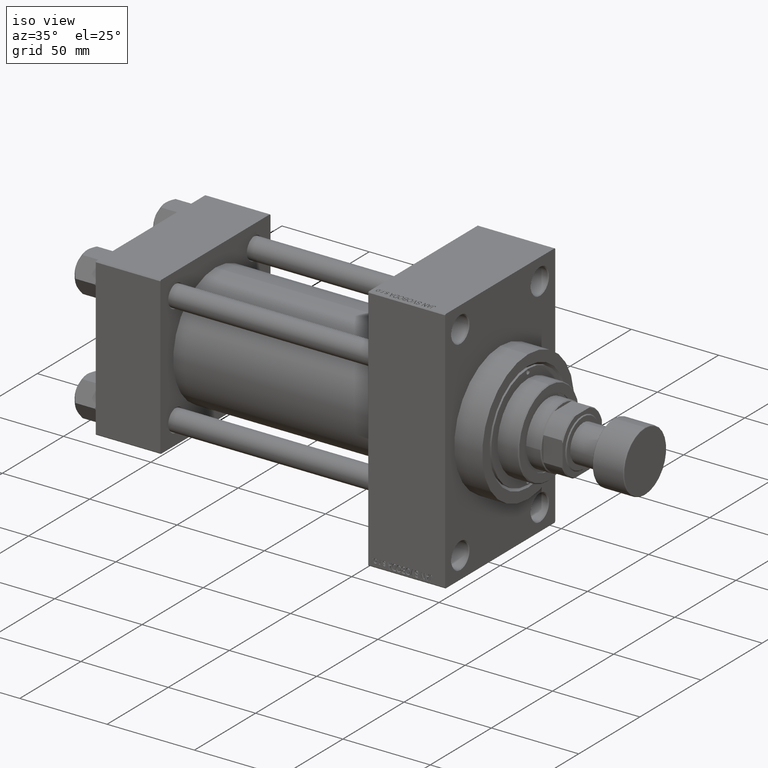
[diagram: clean part render]
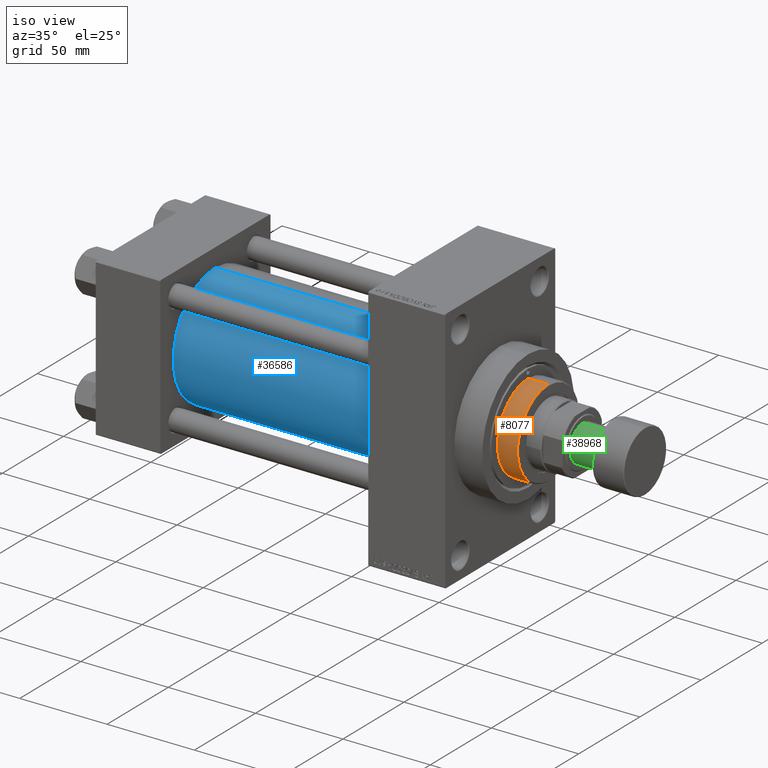
[diagram: same view with three faces highlighted in distinct colors, each labeled with its STEP entity id]
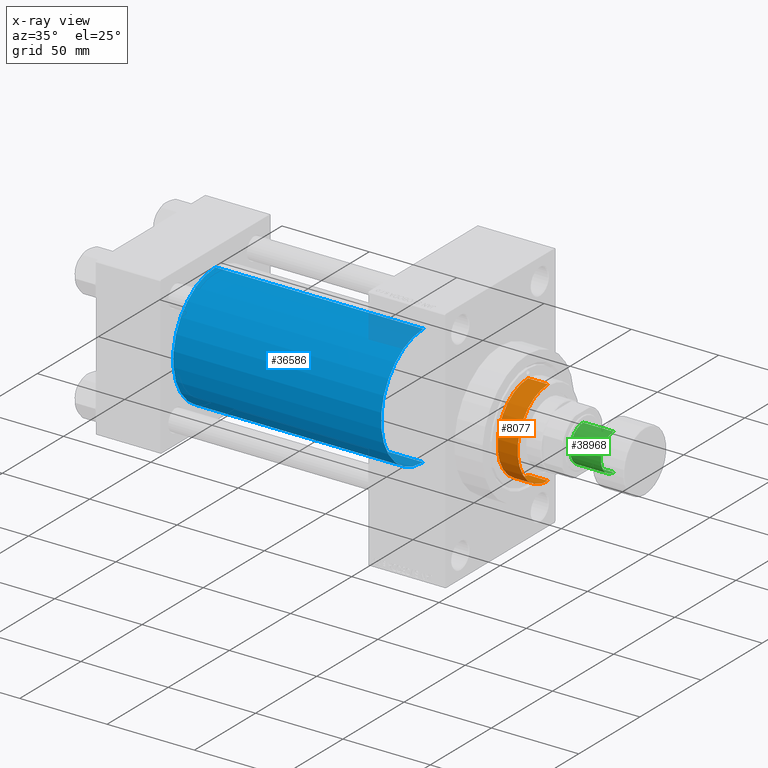
[diagram: x-ray of the same camera — body ghosted, the three highlighted faces saturated]
A machine part, iso view with three faces highlighted in distinct colors.
The next image is the same camera in x-ray (body ghosted, the three faces saturated) — at least one of them is partly hidden behind the body in this view.
Their STEP definitions:

[orange] entity #8077 — the highlighted cylindrical surface (partial cylindrical patch) has radius 25 mm, axis along (-1, 0, 0).
#81 = CARTESIAN_POINT ( 'NONE',  ( 0.000000000000000000, 0.000000000000000000, 54.76000000000000512 ) ) ;
#1305 = VECTOR ( 'NONE', #6706, 1000.000000000000000 ) ;
#3034 = ORIENTED_EDGE ( 'NONE', *, *, #9166, .T. ) ;
#3591 = DIRECTION ( 'NONE',  ( -0.000000000000000000, -0.000000000000000000, -1.000000000000000000 ) ) ;
#6706 = DIRECTION ( 'NONE',  ( -0.000000000000000000, -0.000000000000000000, -1.000000000000000000 ) ) ;
#7332 = EDGE_CURVE ( 'NONE', #40656, #12253, #44641, .T. ) ;
#7592 = CARTESIAN_POINT ( 'NONE',  ( 25.00000000000000000, 3.061616997868383043E-15, 55.26000000000000512 ) ) ;
#8077 = ADVANCED_FACE ( 'NONE', ( #37730 ), #26358, .T. ) ;
#9166 = EDGE_CURVE ( 'NONE', #12253, #38512, #20686, .T. ) ;
#10588 = LINE ( 'NONE', #14700, #1305 ) ;
#11282 = VERTEX_POINT ( 'NONE', #36282 ) ;
#11832 = DIRECTION ( 'NONE',  ( -1.000000000000000000, 0.000000000000000000, 0.000000000000000000 ) ) ;
#11914 = CARTESIAN_POINT ( 'NONE',  ( 0.000000000000000000, 0.000000000000000000, 43.25999999999999801 ) ) ;
#12253 = VERTEX_POINT ( 'NONE', #24327 ) ;
#12686 = AXIS2_PLACEMENT_3D ( 'NONE', #81, #29639, #44413 ) ;
#14700 = CARTESIAN_POINT ( 'NONE',  ( -25.00000000000000000, 0.000000000000000000, 55.26000000000000512 ) ) ;
#17575 = AXIS2_PLACEMENT_3D ( 'NONE', #11914, #22576, #27154 ) ;
#20686 = CIRCLE ( 'NONE', #17575, 25.00000000000000000 ) ;
#22371 = DIRECTION ( 'NONE',  ( -0.000000000000000000, -0.000000000000000000, -1.000000000000000000 ) ) ;
#22576 = DIRECTION ( 'NONE',  ( 0.000000000000000000, 0.000000000000000000, 1.000000000000000000 ) ) ;
#23556 = ORIENTED_EDGE ( 'NONE', *, *, #34145, .T. ) ;
#24327 = CARTESIAN_POINT ( 'NONE',  ( 25.00000000000000000, 3.061616997868383043E-15, 43.25999999999999801 ) ) ;
#25207 = ORIENTED_EDGE ( 'NONE', *, *, #40992, .F. ) ;
#26358 = CYLINDRICAL_SURFACE ( 'NONE', #44588, 25.00000000000000000 ) ;
#27154 = DIRECTION ( 'NONE',  ( 1.000000000000000000, 0.000000000000000000, 0.000000000000000000 ) ) ;
#27474 = CIRCLE ( 'NONE', #12686, 25.00000000000000000 ) ;
#28801 = CARTESIAN_POINT ( 'NONE',  ( 25.00000000000000000, 3.061616997868383043E-15, 54.76000000000000512 ) ) ;
#29639 = DIRECTION ( 'NONE',  ( 0.000000000000000000, 0.000000000000000000, -1.000000000000000000 ) ) ;
#34145 = EDGE_CURVE ( 'NONE', #11282, #40656, #27474, .T. ) ;
#36282 = CARTESIAN_POINT ( 'NONE',  ( -25.00000000000000000, 0.000000000000000000, 54.76000000000000512 ) ) ;
#37730 = FACE_OUTER_BOUND ( 'NONE', #40829, .T. ) ;
#38512 = VERTEX_POINT ( 'NONE', #39704 ) ;
#39704 = CARTESIAN_POINT ( 'NONE',  ( -25.00000000000000000, 0.000000000000000000, 43.25999999999999801 ) ) ;
#40656 = VERTEX_POINT ( 'NONE', #28801 ) ;
#40829 = EDGE_LOOP ( 'NONE', ( #23556, #46656, #3034, #25207 ) ) ;
#40896 = CARTESIAN_POINT ( 'NONE',  ( 0.000000000000000000, 0.000000000000000000, 55.26000000000000512 ) ) ;
#40992 = EDGE_CURVE ( 'NONE', #11282, #38512, #10588, .T. ) ;
#44413 = DIRECTION ( 'NONE',  ( 1.000000000000000000, 0.000000000000000000, 0.000000000000000000 ) ) ;
#44588 = AXIS2_PLACEMENT_3D ( 'NONE', #40896, #3591, #11832 ) ;
#44641 = LINE ( 'NONE', #7592, #46113 ) ;
#46113 = VECTOR ( 'NONE', #22371, 1000.000000000000000 ) ;
#46656 = ORIENTED_EDGE ( 'NONE', *, *, #7332, .T. ) ;

[blue] entity #36586 — the highlighted cylindrical surface (partial cylindrical patch) has radius 34.5 mm, axis along (-1, -0, -0).
#893 = DIRECTION ( 'NONE',  ( 1.000000000000000000, -0.000000000000000000, 0.000000000000000000 ) ) ;
#1788 = EDGE_CURVE ( 'NONE', #35117, #19551, #35867, .T. ) ;
#2619 = DIRECTION ( 'NONE',  ( 0.000000000000000000, 0.000000000000000000, -1.000000000000000000 ) ) ;
#3683 = CYLINDRICAL_SURFACE ( 'NONE', #25065, 34.50000000000000000 ) ;
#4121 = EDGE_LOOP ( 'NONE', ( #36877, #37000, #34770, #21882 ) ) ;
#4221 = LINE ( 'NONE', #33760, #29779 ) ;
#4662 = VERTEX_POINT ( 'NONE', #31135 ) ;
#7264 = DIRECTION ( 'NONE',  ( -1.000000000000000000, -0.000000000000000000, -0.000000000000000000 ) ) ;
#7574 = CIRCLE ( 'NONE', #30783, 34.50000000000000000 ) ;
#11204 = DIRECTION ( 'NONE',  ( 0.000000000000000000, 0.000000000000000000, 1.000000000000000000 ) ) ;
#14571 = CARTESIAN_POINT ( 'NONE',  ( 156.0000000000000000, -2.602085213965210642E-15, 0.000000000000000000 ) ) ;
#14718 = DIRECTION ( 'NONE',  ( 1.000000000000000000, 0.000000000000000000, 0.000000000000000000 ) ) ;
#15280 = CARTESIAN_POINT ( 'NONE',  ( 37.00000000000000711, -2.602085213965210642E-15, 34.50000000000000000 ) ) ;
#15688 = DIRECTION ( 'NONE',  ( 0.000000000000000000, 0.000000000000000000, 1.000000000000000000 ) ) ;
#17480 = EDGE_CURVE ( 'NONE', #4662, #35117, #29547, .T. ) ;
#19326 = CARTESIAN_POINT ( 'NONE',  ( 37.00000000000000711, -2.602085213965210642E-15, 0.000000000000000000 ) ) ;
#19551 = VERTEX_POINT ( 'NONE', #25959 ) ;
#21200 = AXIS2_PLACEMENT_3D ( 'NONE', #19326, #893, #15688 ) ;
#21882 = ORIENTED_EDGE ( 'NONE', *, *, #1788, .T. ) ;
#22293 = CARTESIAN_POINT ( 'NONE',  ( 156.0000000000000000, -2.602085213965210642E-15, 34.50000000000000000 ) ) ;
#23925 = VECTOR ( 'NONE', #7264, 1000.000000000000000 ) ;
#25065 = AXIS2_PLACEMENT_3D ( 'NONE', #33233, #44368, #11204 ) ;
#25959 = CARTESIAN_POINT ( 'NONE',  ( 37.00000000000000711, 1.622946243093158675E-15, -34.50000000000000000 ) ) ;
#29547 = LINE ( 'NONE', #22293, #23925 ) ;
#29779 = VECTOR ( 'NONE', #34483, 1000.000000000000000 ) ;
#30783 = AXIS2_PLACEMENT_3D ( 'NONE', #14571, #14718, #2619 ) ;
#31135 = CARTESIAN_POINT ( 'NONE',  ( 156.0000000000000000, -2.602085213965210642E-15, 34.50000000000000000 ) ) ;
#33233 = CARTESIAN_POINT ( 'NONE',  ( 156.0000000000000000, -2.602085213965210642E-15, 0.000000000000000000 ) ) ;
#33760 = CARTESIAN_POINT ( 'NONE',  ( 156.0000000000000000, 1.622946243093158675E-15, -34.50000000000000000 ) ) ;
#34483 = DIRECTION ( 'NONE',  ( -1.000000000000000000, -0.000000000000000000, -0.000000000000000000 ) ) ;
#34770 = ORIENTED_EDGE ( 'NONE', *, *, #17480, .T. ) ;
#34934 = EDGE_CURVE ( 'NONE', #35889, #19551, #4221, .T. ) ;
#35117 = VERTEX_POINT ( 'NONE', #15280 ) ;
#35867 = CIRCLE ( 'NONE', #21200, 34.50000000000000000 ) ;
#35889 = VERTEX_POINT ( 'NONE', #42826 ) ;
#36586 = ADVANCED_FACE ( 'NONE', ( #36856 ), #3683, .T. ) ;
#36856 = FACE_OUTER_BOUND ( 'NONE', #4121, .T. ) ;
#36877 = ORIENTED_EDGE ( 'NONE', *, *, #34934, .F. ) ;
#37000 = ORIENTED_EDGE ( 'NONE', *, *, #43154, .F. ) ;
#42826 = CARTESIAN_POINT ( 'NONE',  ( 156.0000000000000000, 1.622946243093158675E-15, -34.50000000000000000 ) ) ;
#43154 = EDGE_CURVE ( 'NONE', #4662, #35889, #7574, .T. ) ;
#44368 = DIRECTION ( 'NONE',  ( -1.000000000000000000, -0.000000000000000000, -0.000000000000000000 ) ) ;

[green] entity #38968 — the highlighted cylindrical surface (edge-blend (fillet) strip) has radius 10.5 mm, axis along (1, 0, 0).
#242 = CARTESIAN_POINT ( 'NONE',  ( 10.50000000000000000, 0.000000000000000000, -18.00000000000000000 ) ) ;
#1836 = CARTESIAN_POINT ( 'NONE',  ( 0.000000000000000000, 0.000000000000000000, -35.50000000000000711 ) ) ;
#1897 = VECTOR ( 'NONE', #36394, 1000.000000000000000 ) ;
#2540 = EDGE_CURVE ( 'NONE', #23149, #25729, #34319, .T. ) ;
#3158 = EDGE_CURVE ( 'NONE', #33065, #35044, #15092, .T. ) ;
#5434 = AXIS2_PLACEMENT_3D ( 'NONE', #44498, #41584, #30440 ) ;
#9606 = FACE_OUTER_BOUND ( 'NONE', #32205, .T. ) ;
#9645 = DIRECTION ( 'NONE',  ( -1.000000000000000000, 0.000000000000000000, 0.000000000000000000 ) ) ;
#10491 = AXIS2_PLACEMENT_3D ( 'NONE', #1836, #46157, #42770 ) ;
#11766 = ORIENTED_EDGE ( 'NONE', *, *, #2540, .F. ) ;
#11936 = VECTOR ( 'NONE', #45458, 1000.000000000000000 ) ;
#13105 = ORIENTED_EDGE ( 'NONE', *, *, #3158, .T. ) ;
#14354 = EDGE_CURVE ( 'NONE', #33065, #23149, #16132, .T. ) ;
#15092 = LINE ( 'NONE', #29852, #1897 ) ;
#15252 = ORIENTED_EDGE ( 'NONE', *, *, #19909, .T. ) ;
#15498 = CIRCLE ( 'NONE', #5434, 10.50000000000000000 ) ;
#16132 = CIRCLE ( 'NONE', #27700, 10.50000000000000000 ) ;
#17154 = CARTESIAN_POINT ( 'NONE',  ( 0.000000000000000000, 0.000000000000000000, -35.50000000000000711 ) ) ;
#17482 = CARTESIAN_POINT ( 'NONE',  ( -10.50000000000000000, 1.285879139104720831E-15, -35.50000000000000711 ) ) ;
#19909 = EDGE_CURVE ( 'NONE', #35044, #25729, #15498, .T. ) ;
#20503 = CYLINDRICAL_SURFACE ( 'NONE', #10491, 10.50000000000000000 ) ;
#23149 = VERTEX_POINT ( 'NONE', #17482 ) ;
#25729 = VERTEX_POINT ( 'NONE', #47201 ) ;
#27700 = AXIS2_PLACEMENT_3D ( 'NONE', #17154, #31678, #9645 ) ;
#29691 = CARTESIAN_POINT ( 'NONE',  ( 10.50000000000000000, 0.000000000000000000, -35.50000000000000711 ) ) ;
#29852 = CARTESIAN_POINT ( 'NONE',  ( 10.50000000000000000, 0.000000000000000000, -35.50000000000000711 ) ) ;
#30440 = DIRECTION ( 'NONE',  ( -1.000000000000000000, 0.000000000000000000, 0.000000000000000000 ) ) ;
#30711 = ORIENTED_EDGE ( 'NONE', *, *, #14354, .F. ) ;
#31678 = DIRECTION ( 'NONE',  ( 0.000000000000000000, 0.000000000000000000, -1.000000000000000000 ) ) ;
#32205 = EDGE_LOOP ( 'NONE', ( #11766, #30711, #13105, #15252 ) ) ;
#33065 = VERTEX_POINT ( 'NONE', #29691 ) ;
#34319 = LINE ( 'NONE', #38189, #11936 ) ;
#35044 = VERTEX_POINT ( 'NONE', #242 ) ;
#36394 = DIRECTION ( 'NONE',  ( -0.000000000000000000, -0.000000000000000000, 1.000000000000000000 ) ) ;
#38189 = CARTESIAN_POINT ( 'NONE',  ( -10.50000000000000000, 1.285879139104720831E-15, -35.50000000000000711 ) ) ;
#38968 = ADVANCED_FACE ( 'NONE', ( #9606 ), #20503, .T. ) ;
#41584 = DIRECTION ( 'NONE',  ( 0.000000000000000000, 0.000000000000000000, -1.000000000000000000 ) ) ;
#42770 = DIRECTION ( 'NONE',  ( 1.000000000000000000, 0.000000000000000000, 0.000000000000000000 ) ) ;
#44498 = CARTESIAN_POINT ( 'NONE',  ( 0.000000000000000000, 0.000000000000000000, -18.00000000000000000 ) ) ;
#45458 = DIRECTION ( 'NONE',  ( -0.000000000000000000, -0.000000000000000000, 1.000000000000000000 ) ) ;
#46157 = DIRECTION ( 'NONE',  ( -0.000000000000000000, -0.000000000000000000, 1.000000000000000000 ) ) ;
#47201 = CARTESIAN_POINT ( 'NONE',  ( -10.50000000000000000, 1.285879139104720831E-15, -18.00000000000000000 ) ) ;